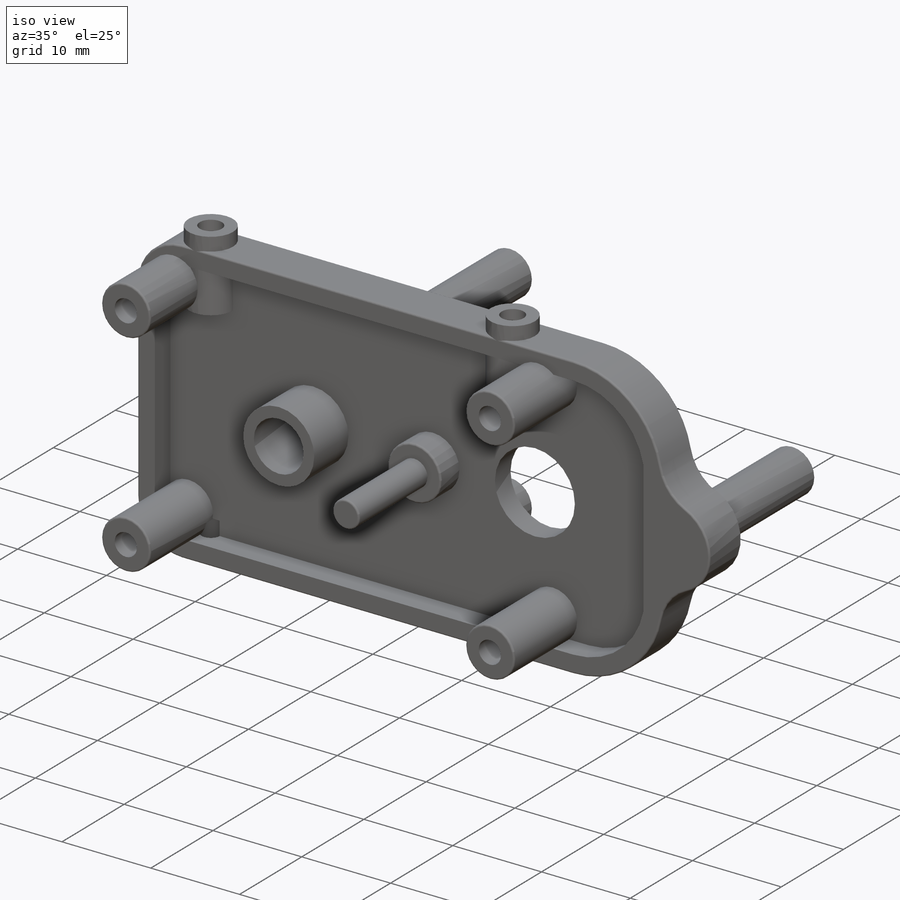
[diagram: iso view]
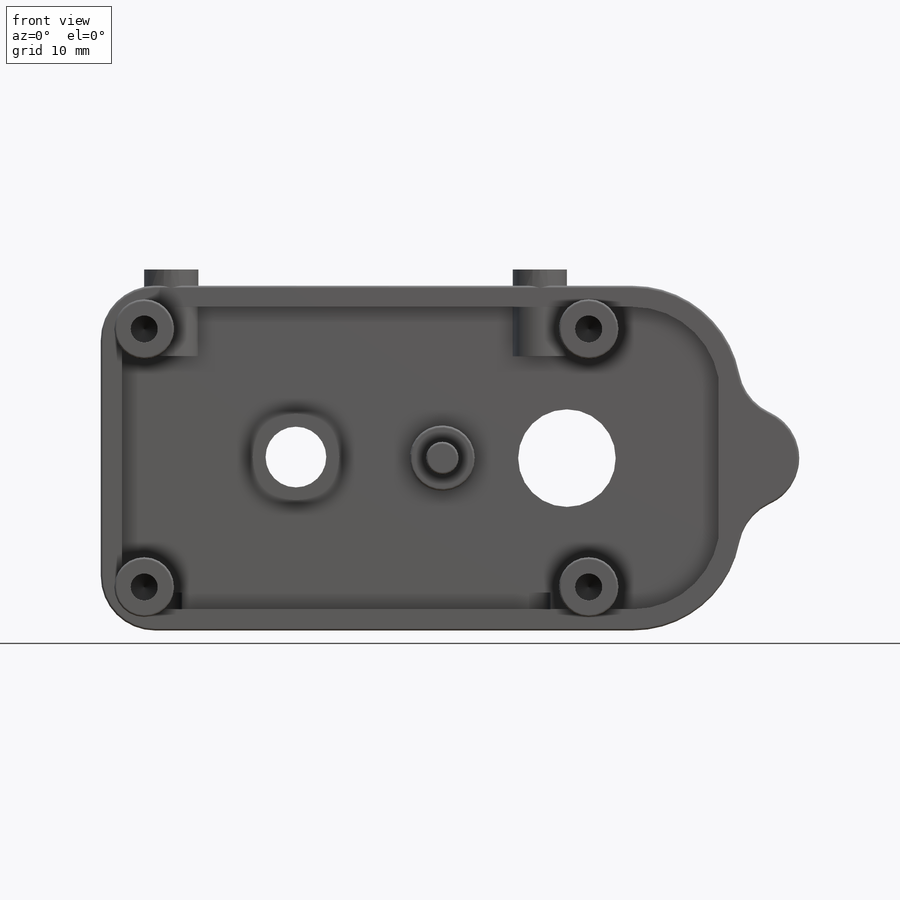
[diagram: front view]
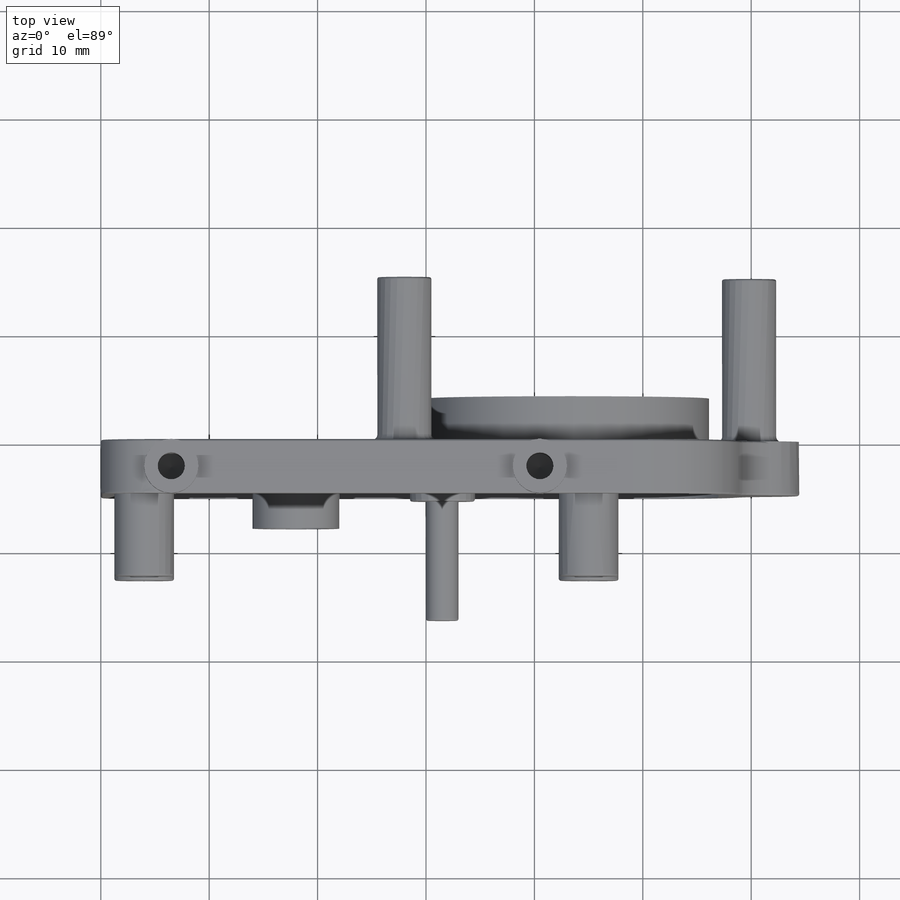
[diagram: top view]
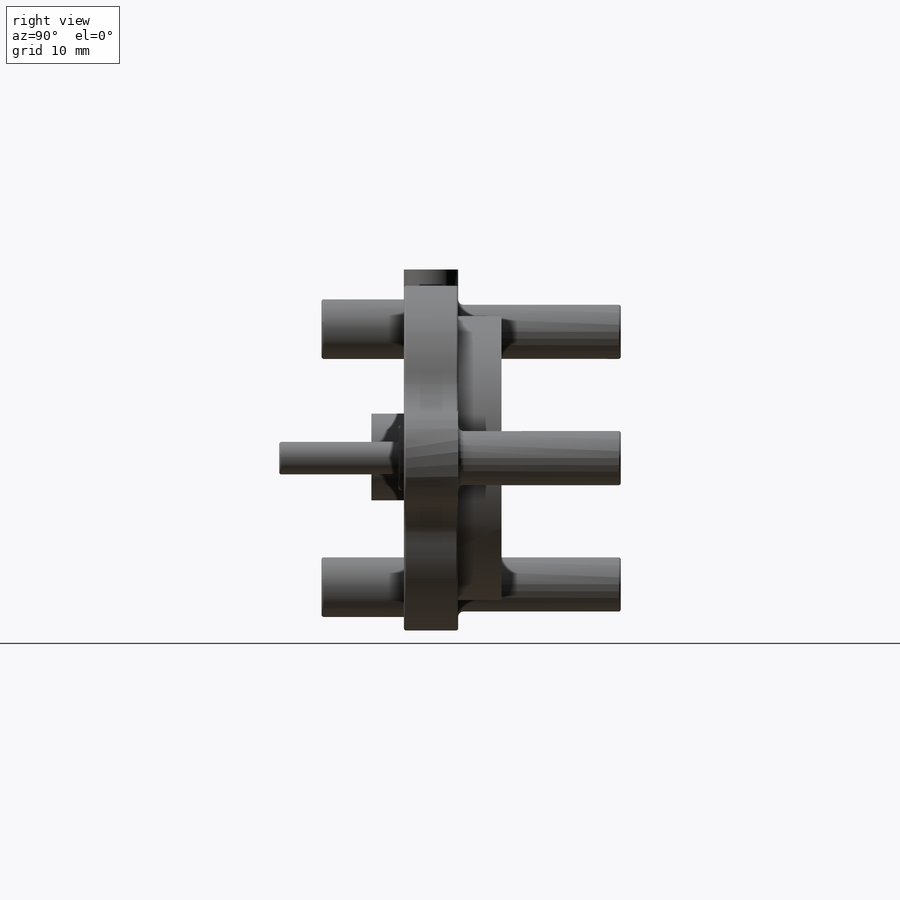
[diagram: right view]
SOLIDWORKS PART (.sldprt)
format: sldprt  version: not decoded by parser v0  size: 924,160 bytes
history: native  units: mm
features: sketch x21, thread x11, fillet x10, extrude x9, plane x5, hole x4, cut_extrude x3, material x1 (+10 scaffold rows collapsed)
feature tree (74):
  scaffold x10  (default folders/planes/origin — collapsed)
  material  "材质 <未指定>"
  plane  "前视基准面"
  plane  "上视基准面"
  plane  "右视基准面"
  sketch  "草图1"  dims[c1.D3=3.0mm c1.D10=~14.479886mm c1.D11=5.6mm c1.D14=9.0mm c1.D8=3.2mm c1.D1=~50.193386mm c1.D2=~73.536754mm c2.D1=50.0mm c2.D2=31.8mm c2.D6=4.0mm c2.D7=4.0mm c2.D8=4.0mm c2.D9=4.0mm c2.D10=18.0mm c2.D12=8.0mm c2.D13=12.0mm c3.D12=~9.070387mm c3.D8=15.5mm c4.D12=4.0mm c4.D13=41.0mm c4.D15=23.8mm c4.D8=43.0mm c5.D15=16.8mm c5.D16=23.8mm c5.D17=23.8mm c5.D4=2.0 c5.D5=2.0]
  extrude  "凸台-拉伸1"  Depth=5mm
  sketch  "草图3"  dims[D1=22.2mm D2=2.0mm]
  extrude  "凸台-拉伸2"  Depth=4mm
  fillet  "圆角1"  Radius=10mm
  fillet  "圆角2"  Radius=5mm
  fillet  "圆角3"  Radius=5mm
  sketch  "草图4"  dims[D2=~14.816564mm D1=1.95mm]
  cut_extrude  "切除-拉伸1"  Depth=2.5mm
  sketch  "草图5"  dims[D1=1.25mm]
  extrude  "凸台-拉伸3"  Depth=10.1mm
  sketch  "草图6"  dims[D1=1.2mm]
  extrude  "凸台-拉伸4"  Depth=5.5mm
  sketch  "草图7"  dims[D1=6.0mm D3=13.5mm D4=~11.50037mm D2=1.5mm]
  extrude  "凸台-拉伸5"  Depth=3mm
  hole  "M3 螺纹孔1"  [1 undecoded]
  sketch  "草图9"
  sketch  "草图8"  dims[hole-wizard template sketch: 50 standard entries collapsed; hole parameters above]
  thread  "孔螺蚊线1"  Diameter=4mm  [1 undecoded]
  thread  "孔螺蚊线2"  Diameter=4mm  [1 undecoded]
  thread  "孔螺蚊线3"  Diameter=4mm  [1 undecoded]
  thread  "孔螺蚊线4"  Diameter=4mm  [1 undecoded]
  plane  "基准面1"  Offset=1.5mm
  sketch  "草图10"  dims[c1.D1=5.0mm c1.D2=5.0mm c1.D3=34.0mm c1.D4=34.0mm c2.D3=6.5mm c2.D4=34.0mm c2.D5=1.25mm c2.D6=1.25mm]
  sketch  "草图12"  dims[D1=5.0mm D2=5.0mm D3=5.0mm D4=23.3mm D5=33.87mm D6=9.0mm]
  extrude  "凸台-拉伸7"  Depth=15mm
  fillet  "圆角4"  Radius=0.5mm
  hole  "M3 螺纹孔2"  [1 undecoded]
  sketch  "草图14"
  sketch  "草图13"  dims[hole-wizard template sketch: 50 standard entries collapsed; hole parameters above]
  thread  "孔螺蚊线5"  Diameter=4mm  [1 undecoded]
  thread  "孔螺蚊线6"  Diameter=4mm  [1 undecoded]
  thread  "孔螺蚊线7"  Diameter=4mm  [1 undecoded]
  fillet  "圆角5"  Radius=0.2mm
  fillet  "圆角6"  Radius=0.2mm
  fillet  "圆角7"  Radius=0.2mm
  fillet  "圆角9"  Radius=0.2mm
  fillet  "圆角10"  Radius=0.2mm
  plane  "基准面2"  Offset=1.5mm
  sketch  "草图16"  dims[D1=5.0mm D2=6.5mm D5=34.0mm D3=1.5mm D4=2.0]
  extrude  "凸台-拉伸8"  Depth=8mm
  sketch  "草图17"
  cut_extrude  "切除-拉伸3"  Depth=5mm
  sketch  "草图23"  dims[D1=5.0mm D2=1.5mm D3=6.5mm D4=17.0mm]
  extrude  "凸台-拉伸9"  Depth=8mm
  cut_extrude  "切除-拉伸4"  [1 undecoded]
  sketch  "草图23<3>"  dims[D1=5.0mm]
  hole  "M3 螺纹孔6"  [1 undecoded]
  sketch  "3D草图6"
  sketch  "草图25"  dims[hole-wizard template sketch: 50 standard entries collapsed; hole parameters above]
  thread  "孔螺蚊线20"  Diameter=4mm  [1 undecoded]
  thread  "孔螺蚊线21"  Diameter=4mm  [1 undecoded]
  hole  "M3 螺纹孔7"  [1 undecoded]
  sketch  "3D草图7"
  sketch  "草图26"  dims[hole-wizard template sketch: 50 standard entries collapsed; hole parameters above]
  thread  "孔螺蚊线22"  Diameter=4mm  [1 undecoded]
  thread  "孔螺蚊线23"  Diameter=4mm  [1 undecoded]
  sketch  "草图27"
  extrude  "凸台-拉伸10"  Depth=14mm
  fillet  "圆角11"  Radius=0.2mm
decode coverage: 47 of 58 modeling features carry decoded parameters
note: ~ marks probable driven/reference dimensions
note: 16 parameter values undecoded
summary: no parameter record found for 5 features
note: suppression state not decoded; provenance and decode notes live in map.json
